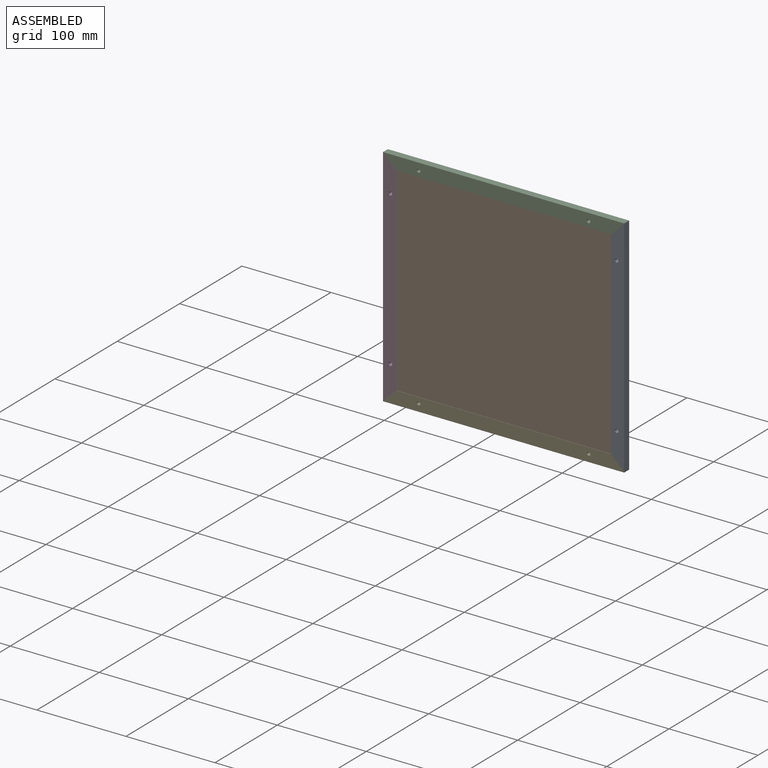
[diagram: assembled view]
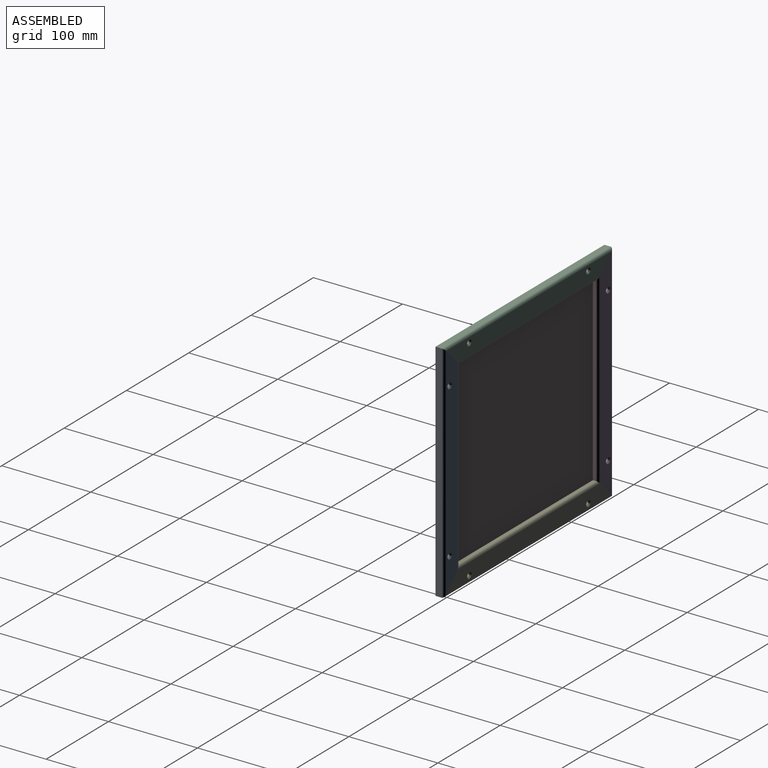
[diagram: assembled view, second angle]
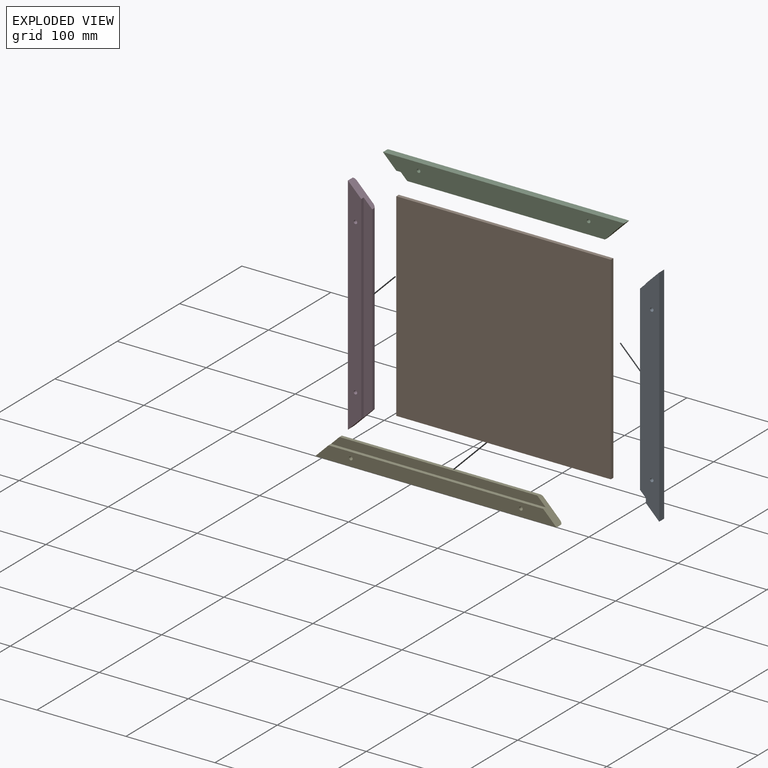
[diagram: exploded view]
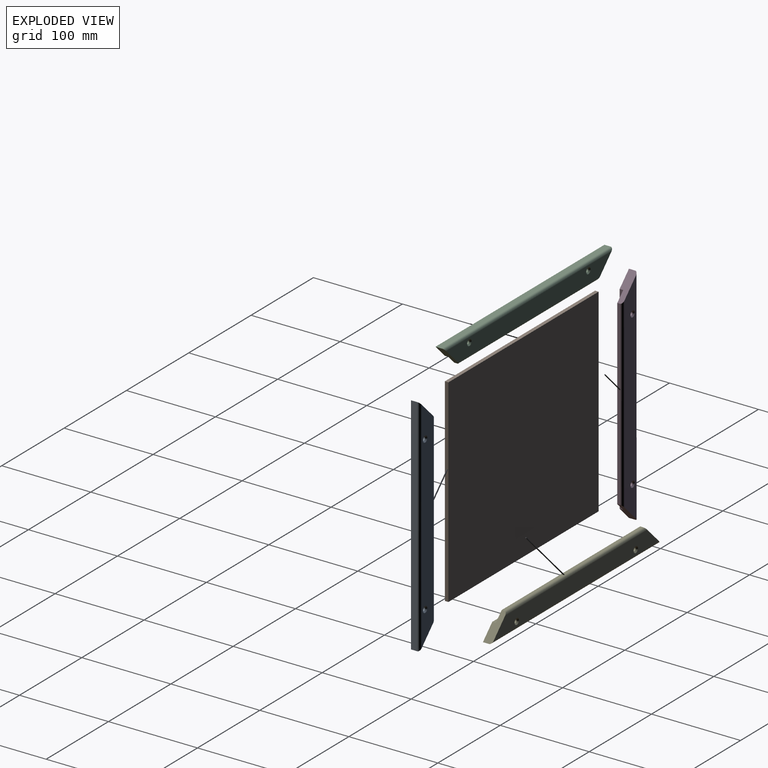
[diagram: exploded view, second angle]
ASSEMBLY  parts=5 mates=4
PART A: 14 faces, bbox 253x10x24.4 mm
  f0: plane 24.4x24.4mm, normal (-0.71,0,-0.71), area 285.9mm2, adj f2,f3,f4,f5,f6,f7,f12,f13
  f1: plane 24.4x24.4mm, normal (0.71,0,-0.71), area 285.9mm2, adj f2,f3,f4,f5,f6,f7,f12,f13
  f2: plane 253x14.9mm, normal (0,-1,0), area 3522.6mm2, adj f0,f1,f4,f6,f8,f10
  f3: plane 204.2x3mm, normal (0,0,-1), area 612.6mm2, adj f0,f1,f7,f12
  f4: plane 253x7mm, normal (0,0,1), area 1771mm2, adj f0,f1,f2,f13
  f5: plane 247x18.4mm, normal (0,1,0), area 4129.3mm2, adj f0,f1,f9,f11,f12,f13
  f6: plane 223.2x4mm, normal (0,0,-1), area 892.8mm2, adj f0,f1,f2,f7
  f7: plane 223.2x9.5mm, normal (0,-1,0), area 2030.1mm2, adj f0,f1,f3,f6
  f8: cylinder r=2mm len=8.5mm, axis (0,1,0), area 106.8mm2, adj f2,f9
  f9: cone r=2mm half-angle=45deg, axis (0,1,0), area 36.7mm2, adj f5,f8
  f10: cylinder r=2mm len=8.5mm, axis (0,1,0), area 106.8mm2, adj f2,f11
  f11: cone r=2mm half-angle=45deg, axis (0,1,0), area 36.7mm2, adj f5,f10
  f12: cylinder r=3mm len=210.2mm, axis (1,0,0), area 972.5mm2, adj f0,f1,f3,f5
  f13: cylinder r=3mm len=253mm, axis (-1,0,0), area 1182mm2, adj f0,f1,f4,f5
PART B: 6 faces, bbox 241x4x223 mm
  f0: plane 241x4mm, normal (0,0,1), area 964mm2, adj f1,f3,f4,f5
  f1: plane 223x4mm, normal (-1,0,0), area 892mm2, adj f0,f2,f4,f5
  f2: plane 241x4mm, normal (0,0,-1), area 964mm2, adj f1,f3,f4,f5
  f3: plane 223x4mm, normal (1,0,0), area 892mm2, adj f0,f2,f4,f5
  f4: plane 241x223mm, normal (0,-1,0), area 53743mm2, adj f0,f1,f2,f3
  f5: plane 241x223mm, normal (0,1,0), area 53743mm2, adj f0,f1,f2,f3
PART C: 14 faces, bbox 271x10x24.4 mm
  f0: plane 24.4x24.4mm, normal (-0.71,0,-0.71), area 285.9mm2, adj f2,f3,f4,f5,f6,f7,f12,f13
  f1: plane 24.4x24.4mm, normal (0.71,0,-0.71), area 285.9mm2, adj f2,f3,f4,f5,f6,f7,f12,f13
  f2: plane 271x14.9mm, normal (0,-1,0), area 3790.8mm2, adj f0,f1,f4,f6,f8,f10
  f3: plane 222.2x3mm, normal (0,0,-1), area 666.6mm2, adj f0,f1,f7,f12
  f4: plane 271x7mm, normal (0,0,1), area 1897mm2, adj f0,f1,f2,f13
  f5: plane 265x18.4mm, normal (0,1,0), area 4460.5mm2, adj f0,f1,f9,f11,f12,f13
  f6: plane 241.2x4mm, normal (0,0,-1), area 964.8mm2, adj f0,f1,f2,f7
  f7: plane 241.2x9.5mm, normal (0,-1,0), area 2201.1mm2, adj f0,f1,f3,f6
  f8: cylinder r=2mm len=8.5mm, axis (0,1,0), area 106.8mm2, adj f2,f9
  f9: cone r=2mm half-angle=45deg, axis (0,1,0), area 36.7mm2, adj f5,f8
  f10: cylinder r=2mm len=8.5mm, axis (0,1,0), area 106.8mm2, adj f2,f11
  f11: cone r=2mm half-angle=45deg, axis (0,1,0), area 36.7mm2, adj f5,f10
  f12: cylinder r=3mm len=228.2mm, axis (1,0,0), area 1057.4mm2, adj f0,f1,f3,f5
  f13: cylinder r=3mm len=271mm, axis (-1,0,0), area 1266.8mm2, adj f0,f1,f4,f5
PART D: same geometry as A
PART E: same geometry as C
PLACE A rot(axis=(0,1,0),90deg) t=(222.2,0,0)mm
PLACE B t=(-9.4,-6,-213.5)mm
PLACE C at identity fixed
PLACE D rot(axis=(0,-1,0),90deg) t=(0,0,-204.2)mm
PLACE E rot(axis=(0,1,0),180deg) t=(222.2,0,-204.2)mm
MATE fastened D.f1 <-> C.f0  axis (0.71,0,0.71) through (-13.6,-4.52,13.6)mm
MATE fastened E.f0 <-> A.f1  axis (0.71,0,0.71) through (235.8,-4.52,-217.8)mm
MATE fastened B.f0 <-> C.f6  axis (0,0,1) through (111.1,-8,9.5)mm
MATE fastened C.f1 <-> A.f0  axis (0.71,0,-0.71) through (235.8,-4.52,13.6)mm
